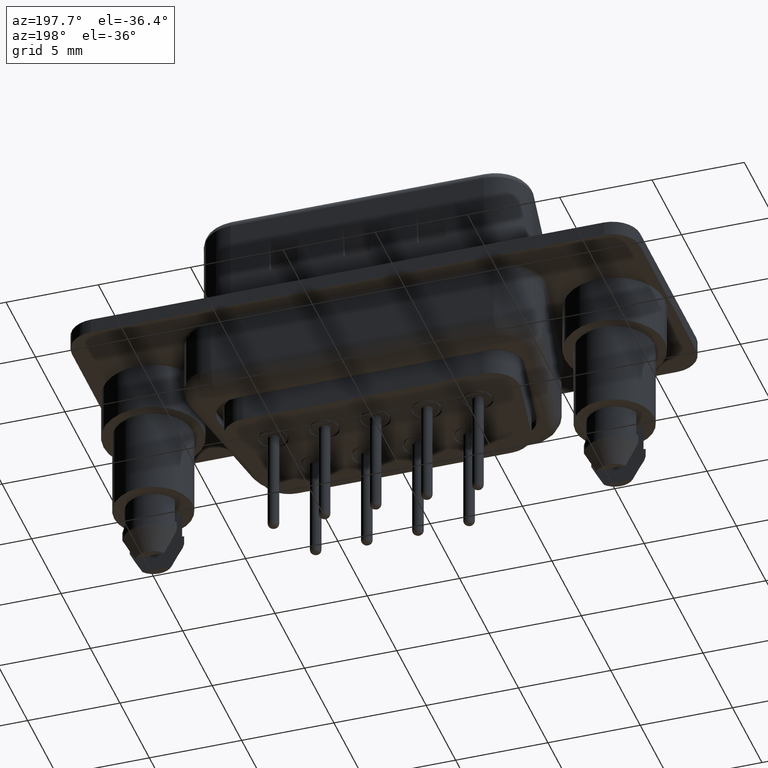
[diagram: clean part render]
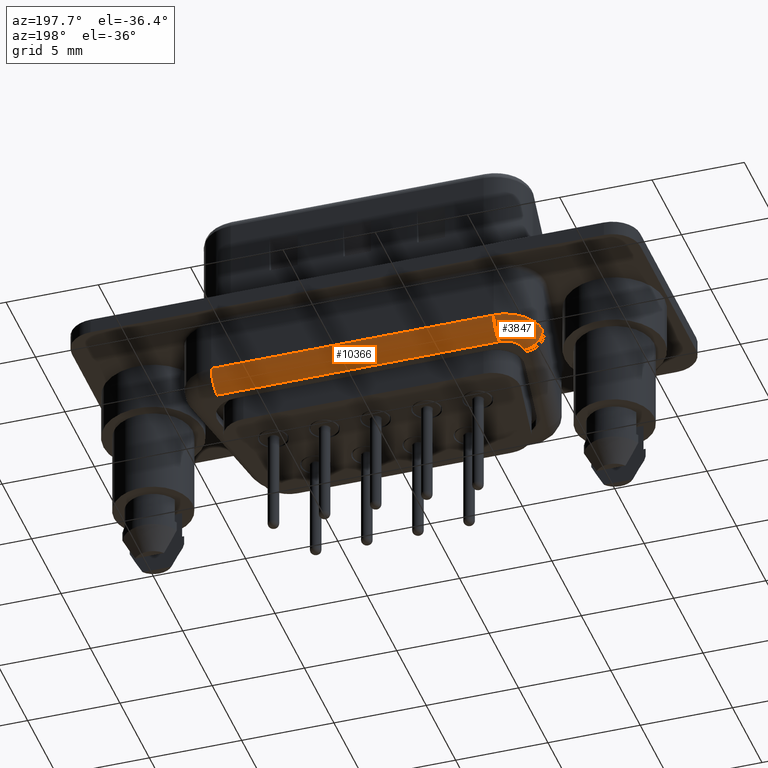
[diagram: same view with one multi-face feature highlighted, each face labeled with its STEP entity id]
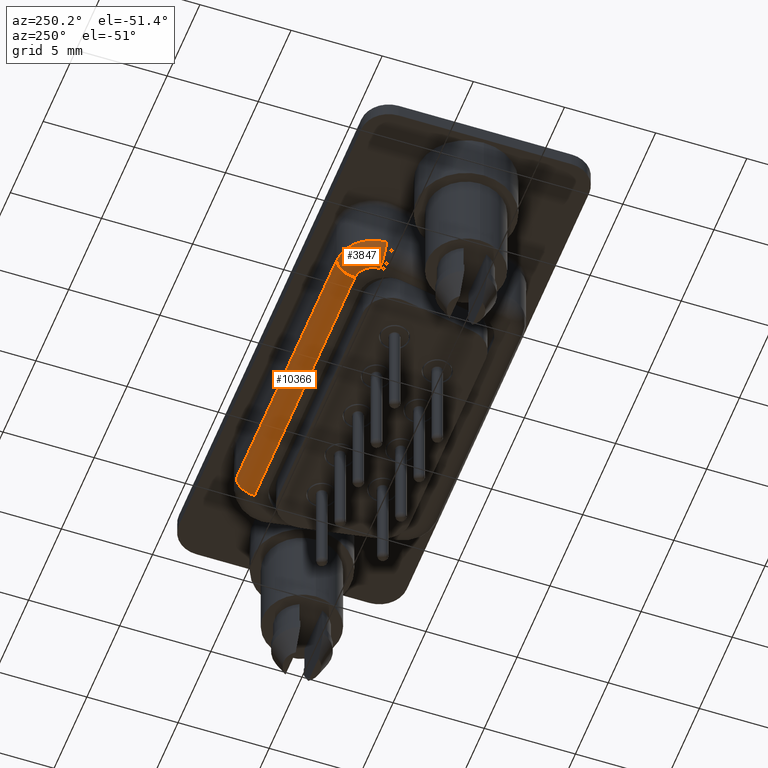
[diagram: same view with one multi-face feature highlighted, each face labeled with its STEP entity id]
A machine part, auxiliary view. The highlighted faces form ONE feature: a constant-radius fillet chain: 2 tangent blend faces with common blend radius 1 mm. The faces share edges in the B-rep.
A second angle (auxiliary view) of the same feature is appended — it is thin or edge-on in the first view.
Their STEP definitions:
[1] entity #3847 (Torus):
#42 = DIRECTION ( 'NONE',  ( -1.000000000000000000, 0.0000000000000000000, 0.0000000000000000000 ) ) ;
#47 = EDGE_CURVE ( 'NONE', #10517, #10823, #8380, .T. ) ;
#180 = CARTESIAN_POINT ( 'NONE',  ( 2.850000000000007638, 3.350000000000005862, -3.499999999999999556 ) ) ;
#716 = CARTESIAN_POINT ( 'NONE',  ( 4.850000000000006750, 3.350000000000005862, -4.500000000000000000 ) ) ;
#1153 = DIRECTION ( 'NONE',  ( 1.000000000000000000, 0.0000000000000000000, 0.0000000000000000000 ) ) ;
#1449 = DIRECTION ( 'NONE',  ( 0.0000000000000000000, -0.0000000000000000000, 1.000000000000000000 ) ) ;
#2485 = CARTESIAN_POINT ( 'NONE',  ( 4.850000000000006750, 4.350000000000005862, -3.499999999999999556 ) ) ;
#2841 = VERTEX_POINT ( 'NONE', #180 ) ;
#3558 = DIRECTION ( 'NONE',  ( 0.0000000000000000000, -0.0000000000000000000, 1.000000000000000000 ) ) ;
#3811 = CARTESIAN_POINT ( 'NONE',  ( 4.850000000000006750, 5.350000000000005862, -3.499999999999999556 ) ) ;
#3847 = ADVANCED_FACE ( 'NONE', ( #5833 ), #14210, .T. ) ;
#4209 = CIRCLE ( 'NONE', #10791, 1.000000000000000000 ) ;
#4641 = AXIS2_PLACEMENT_3D ( 'NONE', #4871, #1449, #1153 ) ;
#4871 = CARTESIAN_POINT ( 'NONE',  ( 4.850000000000006750, 3.350000000000005862, -3.499999999999999556 ) ) ;
#5833 = FACE_OUTER_BOUND ( 'NONE', #10301, .T. ) ;
#7177 = CARTESIAN_POINT ( 'NONE',  ( 4.850000000000006750, 4.350000000000005862, -4.500000000000000000 ) ) ;
#7378 = AXIS2_PLACEMENT_3D ( 'NONE', #14012, #3558, #12857 ) ;
#7824 = CIRCLE ( 'NONE', #4641, 2.000000000000000000 ) ;
#8075 = ORIENTED_EDGE ( 'NONE', *, *, #11269, .F. ) ;
#8380 = CIRCLE ( 'NONE', #12536, 0.9999999999999991118 ) ;
#8857 = AXIS2_PLACEMENT_3D ( 'NONE', #9009, #8870, #14886 ) ;
#8870 = DIRECTION ( 'NONE',  ( 1.224646799147353207E-16, 1.000000000000000000, 0.0000000000000000000 ) ) ;
#9009 = CARTESIAN_POINT ( 'NONE',  ( 3.850000000000007638, 3.350000000000005862, -3.499999999999999556 ) ) ;
#9501 = ORIENTED_EDGE ( 'NONE', *, *, #13757, .T. ) ;
#9624 = ORIENTED_EDGE ( 'NONE', *, *, #14342, .T. ) ;
#10138 = ORIENTED_EDGE ( 'NONE', *, *, #47, .F. ) ;
#10301 = EDGE_LOOP ( 'NONE', ( #10138, #9501, #8075, #9624 ) ) ;
#10412 = DIRECTION ( 'NONE',  ( 0.0000000000000000000, 0.0000000000000000000, 1.000000000000000000 ) ) ;
#10517 = VERTEX_POINT ( 'NONE', #14463 ) ;
#10791 = AXIS2_PLACEMENT_3D ( 'NONE', #2485, #42, #10412 ) ;
#10823 = VERTEX_POINT ( 'NONE', #7177 ) ;
#11269 = EDGE_CURVE ( 'NONE', #11335, #2841, #7824, .T. ) ;
#11335 = VERTEX_POINT ( 'NONE', #3811 ) ;
#11543 = CIRCLE ( 'NONE', #8857, 1.000000000000000000 ) ;
#12377 = DIRECTION ( 'NONE',  ( -0.0000000000000000000, 0.0000000000000000000, -1.000000000000000000 ) ) ;
#12536 = AXIS2_PLACEMENT_3D ( 'NONE', #716, #12377, #14531 ) ;
#12857 = DIRECTION ( 'NONE',  ( 1.000000000000000000, 0.0000000000000000000, 0.0000000000000000000 ) ) ;
#13757 = EDGE_CURVE ( 'NONE', #10517, #2841, #11543, .T. ) ;
#14012 = CARTESIAN_POINT ( 'NONE',  ( 4.850000000000006750, 3.350000000000005862, -3.499999999999999556 ) ) ;
#14210 = TOROIDAL_SURFACE ( 'NONE', #7378, 0.9999999999999995559, 1.000000000000000000 ) ;
#14342 = EDGE_CURVE ( 'NONE', #11335, #10823, #4209, .T. ) ;
#14463 = CARTESIAN_POINT ( 'NONE',  ( 3.850000000000007638, 3.350000000000005862, -4.500000000000000000 ) ) ;
#14531 = DIRECTION ( 'NONE',  ( 1.000000000000000000, 0.0000000000000000000, 0.0000000000000000000 ) ) ;
#14886 = DIRECTION ( 'NONE',  ( -1.000000000000000000, 0.0000000000000000000, 0.0000000000000000000 ) ) ;
[2] entity #10366 (Cylinder):
#16 = CARTESIAN_POINT ( 'NONE',  ( 20.15000000000000924, 5.350000000000005862, -3.499999999999999556 ) ) ;
#42 = DIRECTION ( 'NONE',  ( -1.000000000000000000, 0.0000000000000000000, 0.0000000000000000000 ) ) ;
#91 = CIRCLE ( 'NONE', #8117, 1.000000000000000000 ) ;
#380 = DIRECTION ( 'NONE',  ( 0.0000000000000000000, 0.0000000000000000000, 1.000000000000000000 ) ) ;
#421 = FACE_OUTER_BOUND ( 'NONE', #12088, .T. ) ;
#1228 = VERTEX_POINT ( 'NONE', #16 ) ;
#1341 = DIRECTION ( 'NONE',  ( 0.0000000000000000000, 0.0000000000000000000, -1.000000000000000000 ) ) ;
#1663 = ORIENTED_EDGE ( 'NONE', *, *, #4361, .F. ) ;
#2210 = CARTESIAN_POINT ( 'NONE',  ( 6.031390770746678953, 4.350000000000005862, -4.500000000000000000 ) ) ;
#2219 = VERTEX_POINT ( 'NONE', #14055 ) ;
#2485 = CARTESIAN_POINT ( 'NONE',  ( 4.850000000000006750, 4.350000000000005862, -3.499999999999999556 ) ) ;
#3725 = DIRECTION ( 'NONE',  ( -1.000000000000000000, 0.0000000000000000000, 0.0000000000000000000 ) ) ;
#3810 = ORIENTED_EDGE ( 'NONE', *, *, #14342, .F. ) ;
#3811 = CARTESIAN_POINT ( 'NONE',  ( 4.850000000000006750, 5.350000000000005862, -3.499999999999999556 ) ) ;
#3985 = LINE ( 'NONE', #13455, #8777 ) ;
#4138 = AXIS2_PLACEMENT_3D ( 'NONE', #9578, #4757, #1341 ) ;
#4209 = CIRCLE ( 'NONE', #10791, 1.000000000000000000 ) ;
#4361 = EDGE_CURVE ( 'NONE', #1228, #11335, #3985, .T. ) ;
#4757 = DIRECTION ( 'NONE',  ( 1.000000000000000000, 0.0000000000000000000, 0.0000000000000000000 ) ) ;
#5853 = LINE ( 'NONE', #2210, #7370 ) ;
#7177 = CARTESIAN_POINT ( 'NONE',  ( 4.850000000000006750, 4.350000000000005862, -4.500000000000000000 ) ) ;
#7370 = VECTOR ( 'NONE', #11597, 1000.000000000000000 ) ;
#8117 = AXIS2_PLACEMENT_3D ( 'NONE', #14262, #3725, #380 ) ;
#8646 = DIRECTION ( 'NONE',  ( -1.000000000000000000, -0.0000000000000000000, -0.0000000000000000000 ) ) ;
#8777 = VECTOR ( 'NONE', #8646, 1000.000000000000000 ) ;
#9578 = CARTESIAN_POINT ( 'NONE',  ( 6.031390770746678953, 4.350000000000005862, -3.499999999999999556 ) ) ;
#10366 = ADVANCED_FACE ( 'NONE', ( #421 ), #10564, .T. ) ;
#10412 = DIRECTION ( 'NONE',  ( 0.0000000000000000000, 0.0000000000000000000, 1.000000000000000000 ) ) ;
#10564 = CYLINDRICAL_SURFACE ( 'NONE', #4138, 1.000000000000000000 ) ;
#10791 = AXIS2_PLACEMENT_3D ( 'NONE', #2485, #42, #10412 ) ;
#10823 = VERTEX_POINT ( 'NONE', #7177 ) ;
#11335 = VERTEX_POINT ( 'NONE', #3811 ) ;
#11597 = DIRECTION ( 'NONE',  ( 1.000000000000000000, 0.0000000000000000000, 0.0000000000000000000 ) ) ;
#12088 = EDGE_LOOP ( 'NONE', ( #14807, #12880, #3810, #1663 ) ) ;
#12880 = ORIENTED_EDGE ( 'NONE', *, *, #13878, .F. ) ;
#13455 = CARTESIAN_POINT ( 'NONE',  ( 20.15000000000000924, 5.350000000000005862, -3.499999999999999556 ) ) ;
#13878 = EDGE_CURVE ( 'NONE', #10823, #2219, #5853, .T. ) ;
#14018 = EDGE_CURVE ( 'NONE', #1228, #2219, #91, .T. ) ;
#14055 = CARTESIAN_POINT ( 'NONE',  ( 20.15000000000000924, 4.350000000000005862, -4.500000000000000000 ) ) ;
#14262 = CARTESIAN_POINT ( 'NONE',  ( 20.15000000000000924, 4.350000000000005862, -3.499999999999999556 ) ) ;
#14342 = EDGE_CURVE ( 'NONE', #11335, #10823, #4209, .T. ) ;
#14807 = ORIENTED_EDGE ( 'NONE', *, *, #14018, .T. ) ;